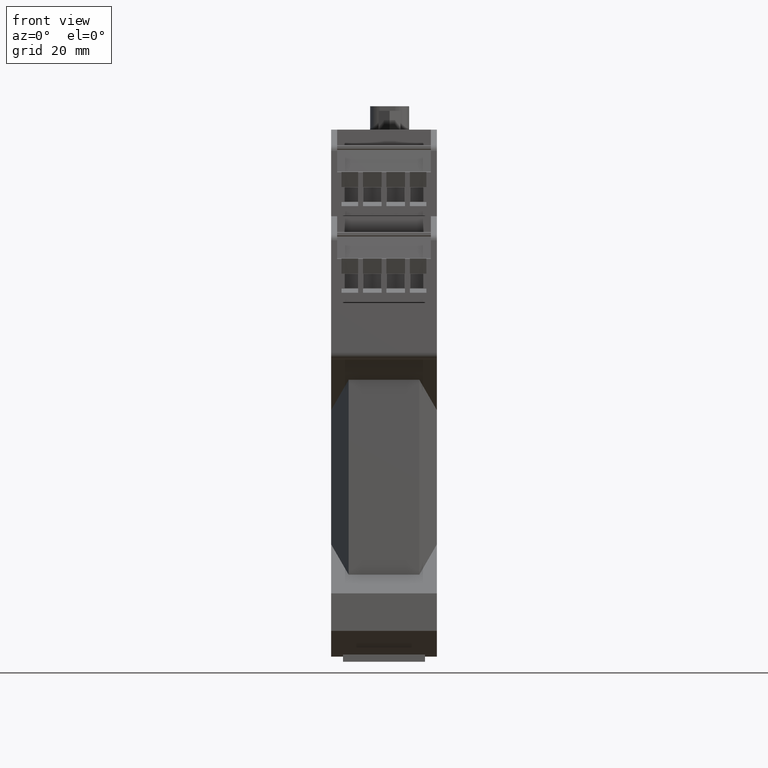
[diagram: clean part render]
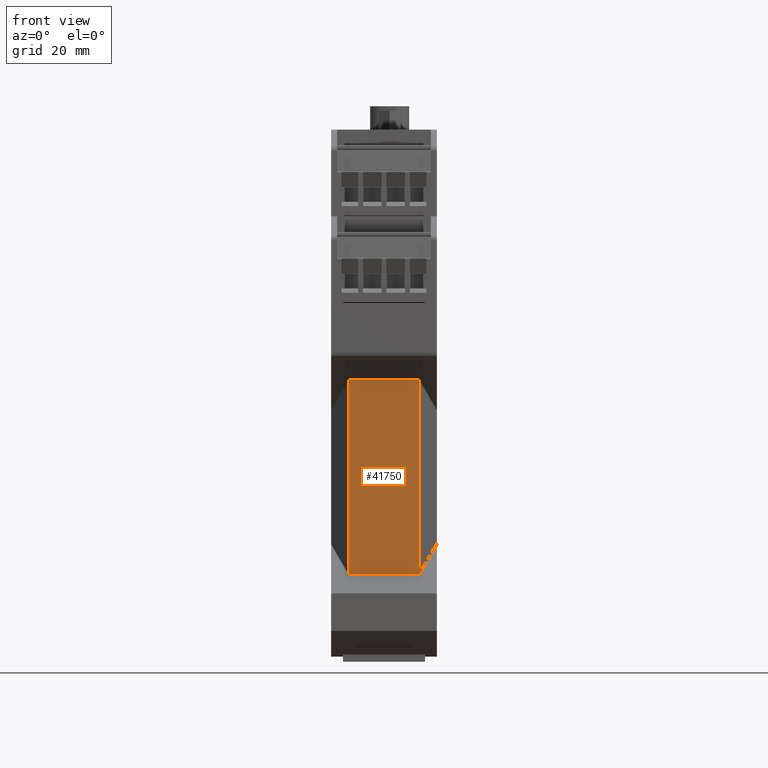
[diagram: same view with one face highlighted and labeled with its STEP entity id]
A machine part, front view. The second image highlights one B-rep face of the part: STEP entity #41750.
In plain terms, the highlighted planar face has unit normal (0, -1, 0).
Its self-contained STEP definition (entity closure, byte-faithful):
#38770=CARTESIAN_POINT('',(-42.5499999999972,12.0000000000029,
3.75277674973097));
#38780=VERTEX_POINT('',#38770);
#38810=CARTESIAN_POINT('',(-42.5499999999972,12.0000000000029,26.4));
#38820=DIRECTION('',(0.,8.7157639921045E-33,-1.));
#38830=VECTOR('',#38820,1.);
#38840=LINE('',#38810,#38830);
#38850=CARTESIAN_POINT('',(-42.5499999999972,12.0000000000029,
18.847223250269));
#38860=VERTEX_POINT('',#38850);
#38870=EDGE_CURVE('',#38860,#38780,#38840,.T.);
#41450=CARTESIAN_POINT('',(-42.5499999999969,53.5999999999984,22.6));
#41460=DIRECTION('',(-1.,6.60000000000173E-15,0.));
#41470=DIRECTION('',(6.60000000000173E-15,1.,0.));
#41480=AXIS2_PLACEMENT_3D('',#41450,#41460,#41470);
#41490=PLANE('',#41480);
#41500=ORIENTED_EDGE('',*,*,#38870,.F.);
#41510=CARTESIAN_POINT('',(-42.5499999999974,-7.99999999993772,
3.75277674973104));
#41520=DIRECTION('',(-6.60000000000173E-15,-1.,3.8105117766525E-15));
#41530=VECTOR('',#41520,1.);
#41540=LINE('',#41510,#41530);
#41550=CARTESIAN_POINT('',(-42.5499999999969,53.5999999999983,
3.75277674973082));
#41560=VERTEX_POINT('',#41550);
#41570=EDGE_CURVE('',#41560,#38780,#41540,.T.);
#41580=ORIENTED_EDGE('',*,*,#41570,.T.);
#41590=CARTESIAN_POINT('',(-42.5499999999969,53.5999999999984,26.4));
#41600=DIRECTION('',(0.,8.71576399210515E-33,-1.));
#41610=VECTOR('',#41600,1.);
#41620=LINE('',#41590,#41610);
#41630=CARTESIAN_POINT('',(-42.5499999999969,53.5999999999983,
18.8472232502692));
#41640=VERTEX_POINT('',#41630);
#41650=EDGE_CURVE('',#41640,#41560,#41620,.T.);
#41660=ORIENTED_EDGE('',*,*,#41650,.T.);
#41670=CARTESIAN_POINT('',(-42.5499999999973,-7.99999999993772,
18.847223250269));
#41680=DIRECTION('',(-6.60000000000172E-15,-1.,-3.8105117766525E-15));
#41690=VECTOR('',#41680,1.);
#41700=LINE('',#41670,#41690);
#41710=EDGE_CURVE('',#41640,#38860,#41700,.T.);
#41720=ORIENTED_EDGE('',*,*,#41710,.F.);
#41730=EDGE_LOOP('',(#41720,#41660,#41580,#41500));
#41740=FACE_OUTER_BOUND('',#41730,.T.);
#41750=ADVANCED_FACE('',(#41740),#41490,.T.);